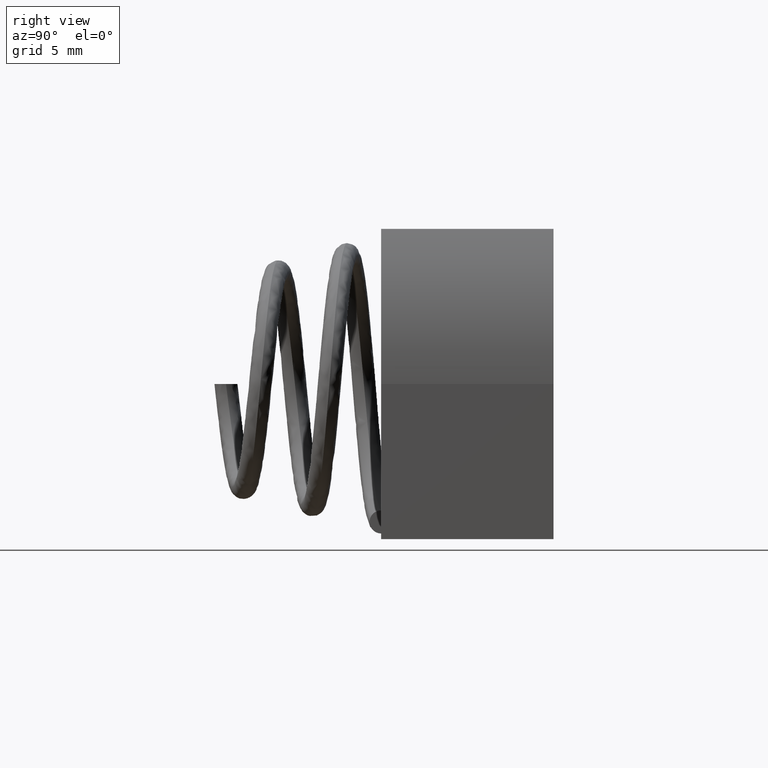
[diagram: clean part render]
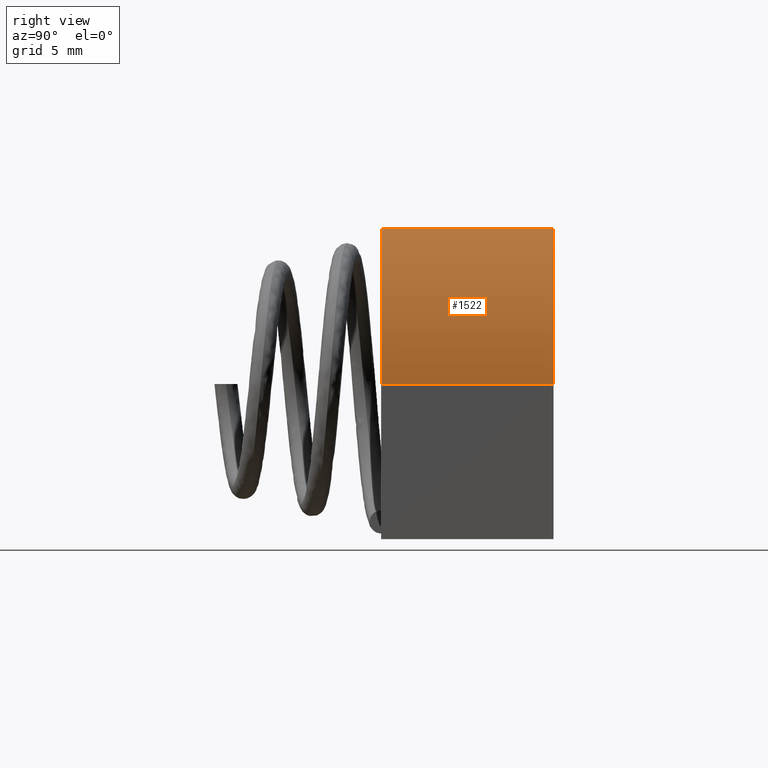
[diagram: same view with one face highlighted and labeled with its STEP entity id]
A machine part, right view. The second image highlights one B-rep face of the part: STEP entity #1522.
In plain terms, the highlighted cylindrical surface (partial cylindrical patch) has radius 11.9063 mm, axis along (-0, 1, -0).
Its self-contained STEP definition (entity closure, byte-faithful):
#1 = EDGE_CURVE ( 'NONE', #1448, #1435, #1640, .T. ) ;
#4 = EDGE_CURVE ( 'NONE', #1435, #1479, #1572, .T. ) ;
#8 = AXIS2_PLACEMENT_3D ( 'NONE', #1000, #999, #994 ) ;
#34 = CARTESIAN_POINT ( 'NONE',  ( 0.4218750000000000000, -0.1562500000000000000, 0.2812500000000000000 ) ) ;
#74 = CARTESIAN_POINT ( 'NONE',  ( 0.4218750000000000000, -0.1562500000000000000, 0.2812500000000000000 ) ) ;
#79 = CARTESIAN_POINT ( 'NONE',  ( 0.5156249999999998900, -0.1562500000000000000, 0.0000000000000000000 ) ) ;
#85 = CARTESIAN_POINT ( 'NONE',  ( 0.4218750000000000000, 0.1562500000000000000, 0.2812500000000000000 ) ) ;
#548 = CARTESIAN_POINT ( 'NONE',  ( 0.04687499999999873000, -0.1562500000000000000, 0.0000000000000000000 ) ) ;
#551 = DIRECTION ( 'NONE',  ( -0.0000000000000000000, -1.000000000000000000, 0.0000000000000000000 ) ) ;
#552 = DIRECTION ( 'NONE',  ( 0.0000000000000000000, 0.0000000000000000000, -1.000000000000000000 ) ) ;
#770 = EDGE_LOOP ( 'NONE', ( #831, #832, #808, #822 ) ) ;
#808 = ORIENTED_EDGE ( 'NONE', *, *, #1567, .F. ) ;
#822 = ORIENTED_EDGE ( 'NONE', *, *, #1, .T. ) ;
#831 = ORIENTED_EDGE ( 'NONE', *, *, #4, .T. ) ;
#832 = ORIENTED_EDGE ( 'NONE', *, *, #1372, .F. ) ;
#863 = FACE_OUTER_BOUND ( 'NONE', #770, .T. ) ;
#869 = CYLINDRICAL_SURFACE ( 'NONE', #8, 0.4687500000000011100 ) ;
#870 = CIRCLE ( 'NONE', #1648, 0.4687500000000011100 ) ;
#886 = VECTOR ( 'NONE', #1384, 39.37007874015748100 ) ;
#949 = AXIS2_PLACEMENT_3D ( 'NONE', #1418, #1408, #1417 ) ;
#994 = DIRECTION ( 'NONE',  ( 0.0000000000000000000, 0.0000000000000000000, 1.000000000000000000 ) ) ;
#999 = DIRECTION ( 'NONE',  ( -0.0000000000000000000, 1.000000000000000000, -0.0000000000000000000 ) ) ;
#1000 = CARTESIAN_POINT ( 'NONE',  ( 0.04687499999999873000, -0.1562500000000000000, 0.0000000000000000000 ) ) ;
#1372 = EDGE_CURVE ( 'NONE', #1441, #1479, #1644, .T. ) ;
#1384 = DIRECTION ( 'NONE',  ( -0.0000000000000000000, 1.000000000000000000, -0.0000000000000000000 ) ) ;
#1408 = DIRECTION ( 'NONE',  ( -0.0000000000000000000, -1.000000000000000000, 0.0000000000000000000 ) ) ;
#1417 = DIRECTION ( 'NONE',  ( 0.0000000000000000000, 0.0000000000000000000, -1.000000000000000000 ) ) ;
#1418 = CARTESIAN_POINT ( 'NONE',  ( 0.04687499999999873000, 0.1562500000000000000, 0.0000000000000000000 ) ) ;
#1435 = VERTEX_POINT ( 'NONE', #1514 ) ;
#1441 = VERTEX_POINT ( 'NONE', #74 ) ;
#1448 = VERTEX_POINT ( 'NONE', #79 ) ;
#1450 = CARTESIAN_POINT ( 'NONE',  ( 0.5156249999999998900, -0.1562500000000000000, 0.0000000000000000000 ) ) ;
#1477 = DIRECTION ( 'NONE',  ( -0.0000000000000000000, 1.000000000000000000, -0.0000000000000000000 ) ) ;
#1479 = VERTEX_POINT ( 'NONE', #85 ) ;
#1514 = CARTESIAN_POINT ( 'NONE',  ( 0.5156249999999998900, 0.1562500000000000000, 0.0000000000000000000 ) ) ;
#1522 = ADVANCED_FACE ( 'NONE', ( #863 ), #869, .T. ) ;
#1567 = EDGE_CURVE ( 'NONE', #1448, #1441, #870, .T. ) ;
#1572 = CIRCLE ( 'NONE', #949, 0.4687500000000011100 ) ;
#1636 = VECTOR ( 'NONE', #1477, 39.37007874015748100 ) ;
#1640 = LINE ( 'NONE', #1450, #1636 ) ;
#1644 = LINE ( 'NONE', #34, #886 ) ;
#1648 = AXIS2_PLACEMENT_3D ( 'NONE', #548, #551, #552 ) ;